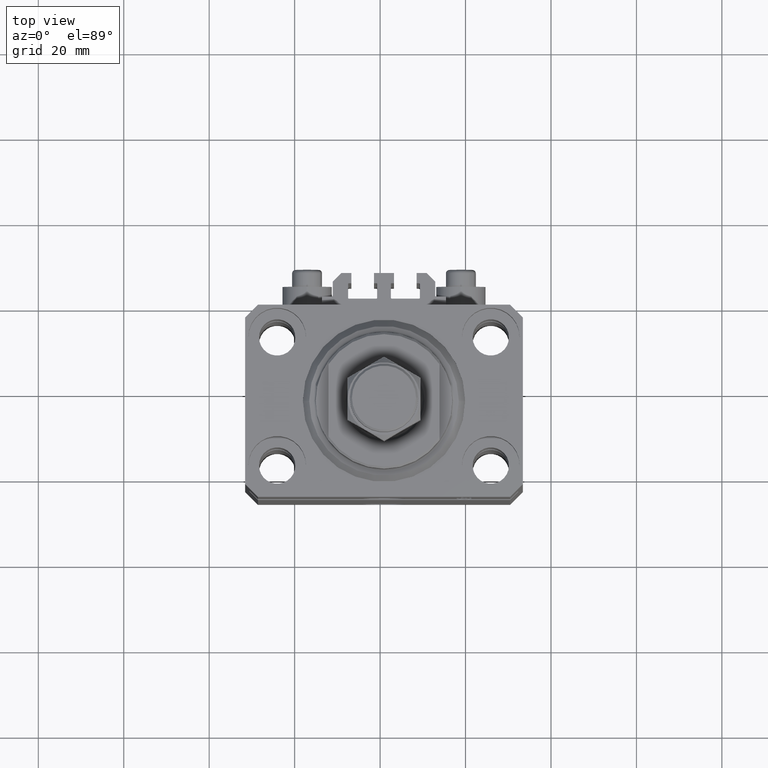
[diagram: clean part render]
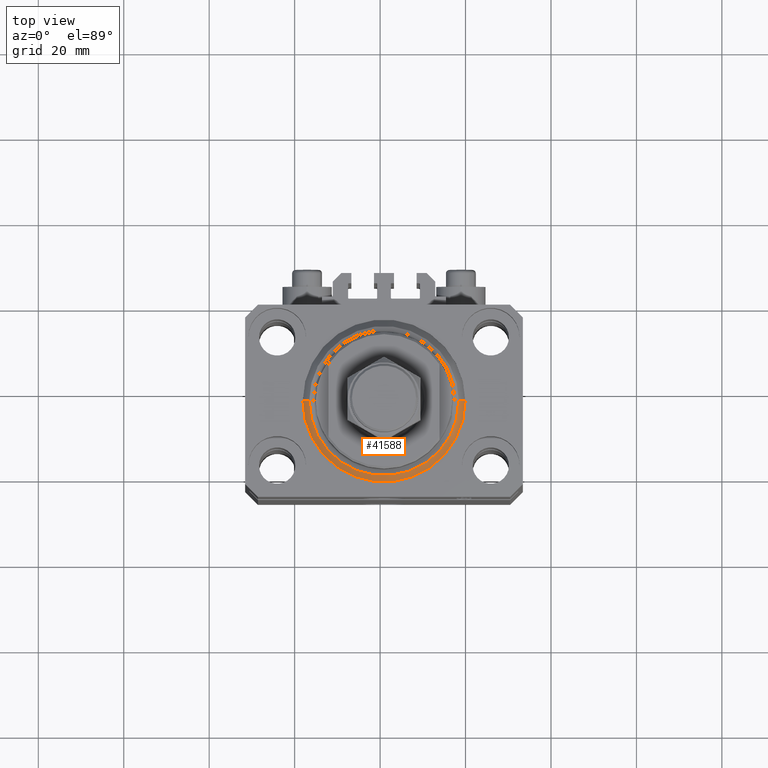
[diagram: same view with one face highlighted and labeled with its STEP entity id]
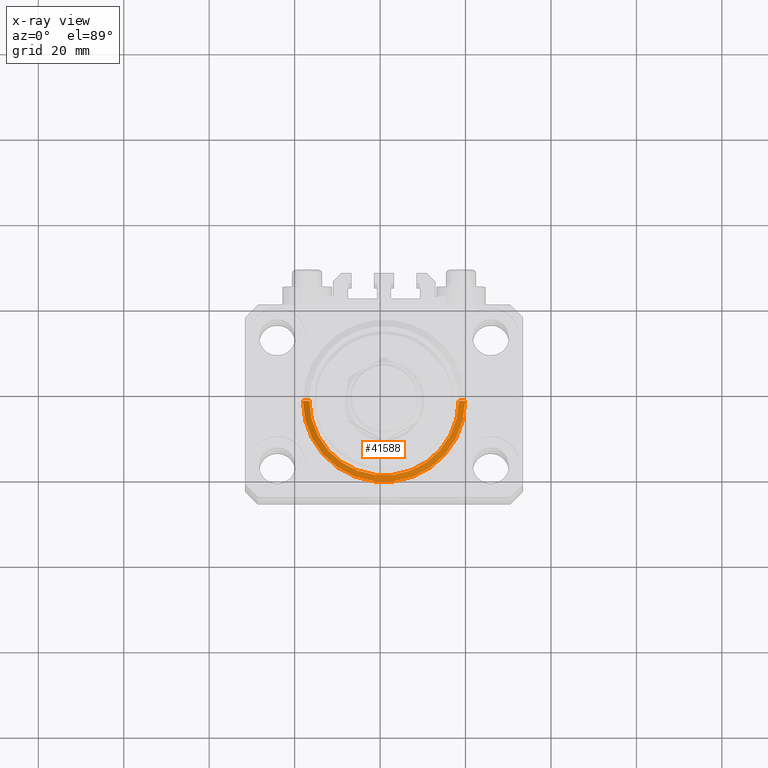
[diagram: x-ray of the same camera — body ghosted, the highlighted face saturated]
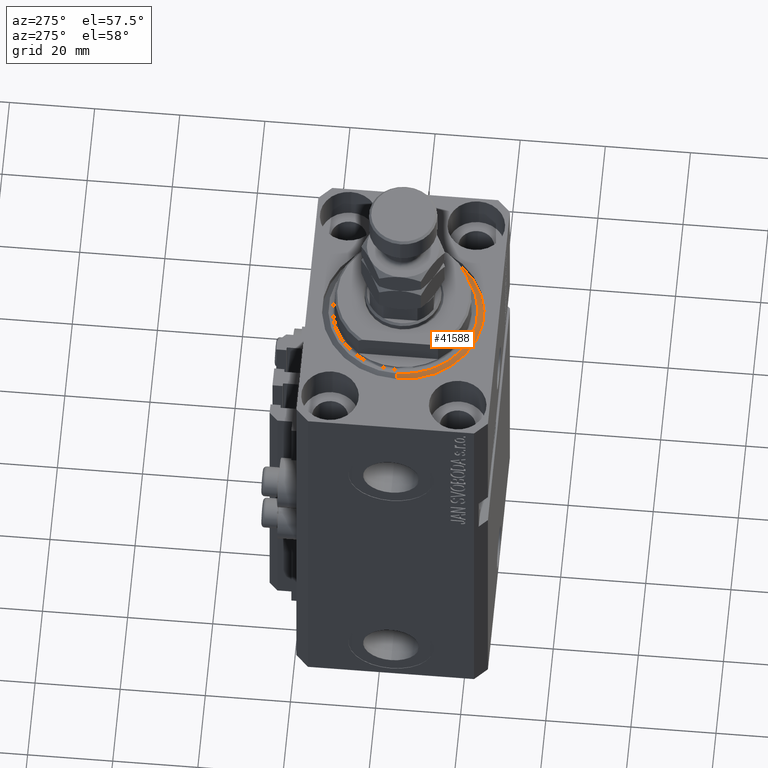
[diagram: same view with one face highlighted and labeled with its STEP entity id]
A machine part, top view. The second image highlights one B-rep face of the part: STEP entity #41588.
The next image is the same camera in x-ray: the body ghosted, the highlighted face saturated — about 0% of this face is hidden behind the body in this view.
A second angle (auxiliary view) of the same face is appended — the face is thin or edge-on in the first view.
In plain terms, the highlighted conical surface has half-angle 45 deg.
Its self-contained STEP definition (entity closure, byte-faithful):
#3634 = DIRECTION ( 'NONE',  ( 1.000000000000000000, 0.000000000000000000, 0.000000000000000000 ) ) ;
#3885 = FACE_OUTER_BOUND ( 'NONE', #27091, .T. ) ;
#4287 = EDGE_CURVE ( 'NONE', #38267, #17054, #32372, .T. ) ;
#4847 = DIRECTION ( 'NONE',  ( 1.000000000000000000, 0.000000000000000000, 0.000000000000000000 ) ) ;
#6371 = CIRCLE ( 'NONE', #18198, 19.00000000000000000 ) ;
#11892 = ORIENTED_EDGE ( 'NONE', *, *, #4287, .T. ) ;
#13369 = VECTOR ( 'NONE', #34394, 1000.000000000000000 ) ;
#13673 = DIRECTION ( 'NONE',  ( -0.000000000000000000, -0.000000000000000000, -1.000000000000000000 ) ) ;
#14416 = AXIS2_PLACEMENT_3D ( 'NONE', #18102, #13673, #48202 ) ;
#15099 = EDGE_CURVE ( 'NONE', #17680, #17054, #6371, .T. ) ;
#16036 = ORIENTED_EDGE ( 'NONE', *, *, #39031, .F. ) ;
#16198 = CARTESIAN_POINT ( 'NONE',  ( 0.000000000000000000, 0.000000000000000000, 1.500000000000001332 ) ) ;
#17054 = VERTEX_POINT ( 'NONE', #37574 ) ;
#17149 = CARTESIAN_POINT ( 'NONE',  ( -17.49999999999999645, 2.234980408443919215E-15, 0.000000000000000000 ) ) ;
#17680 = VERTEX_POINT ( 'NONE', #25562 ) ;
#18102 = CARTESIAN_POINT ( 'NONE',  ( 0.000000000000000000, 0.000000000000000000, 0.000000000000000000 ) ) ;
#18198 = AXIS2_PLACEMENT_3D ( 'NONE', #16198, #24084, #4847 ) ;
#18457 = CONICAL_SURFACE ( 'NONE', #35688, 19.00000000000000000, 0.7853981633974492782 ) ;
#22881 = VERTEX_POINT ( 'NONE', #17149 ) ;
#22883 = DIRECTION ( 'NONE',  ( -0.000000000000000000, -0.000000000000000000, 1.000000000000000000 ) ) ;
#24084 = DIRECTION ( 'NONE',  ( -0.000000000000000000, -0.000000000000000000, 1.000000000000000000 ) ) ;
#25562 = CARTESIAN_POINT ( 'NONE',  ( -19.00000000000000000, 0.000000000000000000, 1.500000000000001332 ) ) ;
#26366 = EDGE_CURVE ( 'NONE', #22881, #17680, #39078, .T. ) ;
#27091 = EDGE_LOOP ( 'NONE', ( #29831, #16036, #11892, #28205 ) ) ;
#28205 = ORIENTED_EDGE ( 'NONE', *, *, #15099, .F. ) ;
#28245 = VECTOR ( 'NONE', #32609, 1000.000000000000000 ) ;
#29831 = ORIENTED_EDGE ( 'NONE', *, *, #26366, .F. ) ;
#32372 = LINE ( 'NONE', #36559, #28245 ) ;
#32609 = DIRECTION ( 'NONE',  ( 0.7071067811865483499, 0.000000000000000000, 0.7071067811865467956 ) ) ;
#34394 = DIRECTION ( 'NONE',  ( -0.7071067811865483499, 8.659560562354942719E-17, 0.7071067811865467956 ) ) ;
#34646 = CARTESIAN_POINT ( 'NONE',  ( -19.00000000000000000, 2.326828918379970970E-15, 1.500000000000001332 ) ) ;
#35688 = AXIS2_PLACEMENT_3D ( 'NONE', #36967, #22883, #3634 ) ;
#35727 = CIRCLE ( 'NONE', #14416, 17.49999999999999645 ) ;
#36559 = CARTESIAN_POINT ( 'NONE',  ( 19.00000000000000000, 0.000000000000000000, 1.500000000000001332 ) ) ;
#36967 = CARTESIAN_POINT ( 'NONE',  ( 0.000000000000000000, 0.000000000000000000, 1.500000000000001332 ) ) ;
#37574 = CARTESIAN_POINT ( 'NONE',  ( 19.00000000000000000, 2.326828918379970970E-15, 1.500000000000001332 ) ) ;
#38267 = VERTEX_POINT ( 'NONE', #44976 ) ;
#39031 = EDGE_CURVE ( 'NONE', #38267, #22881, #35727, .T. ) ;
#39078 = LINE ( 'NONE', #34646, #13369 ) ;
#41588 = ADVANCED_FACE ( 'NONE', ( #3885 ), #18457, .T. ) ;
#44976 = CARTESIAN_POINT ( 'NONE',  ( 17.49999999999999645, 0.000000000000000000, 0.000000000000000000 ) ) ;
#48202 = DIRECTION ( 'NONE',  ( 1.000000000000000000, 0.000000000000000000, 0.000000000000000000 ) ) ;